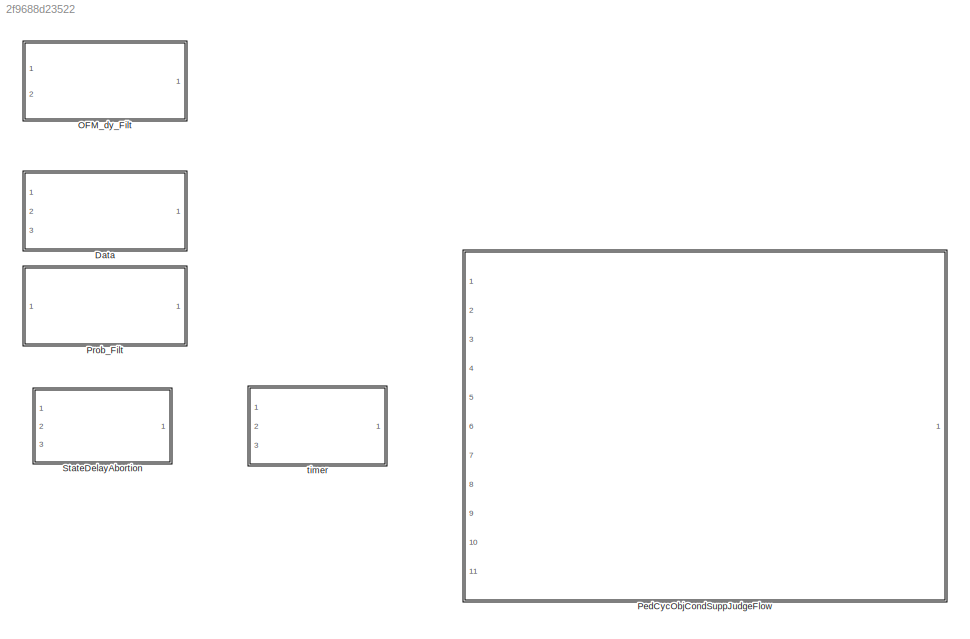
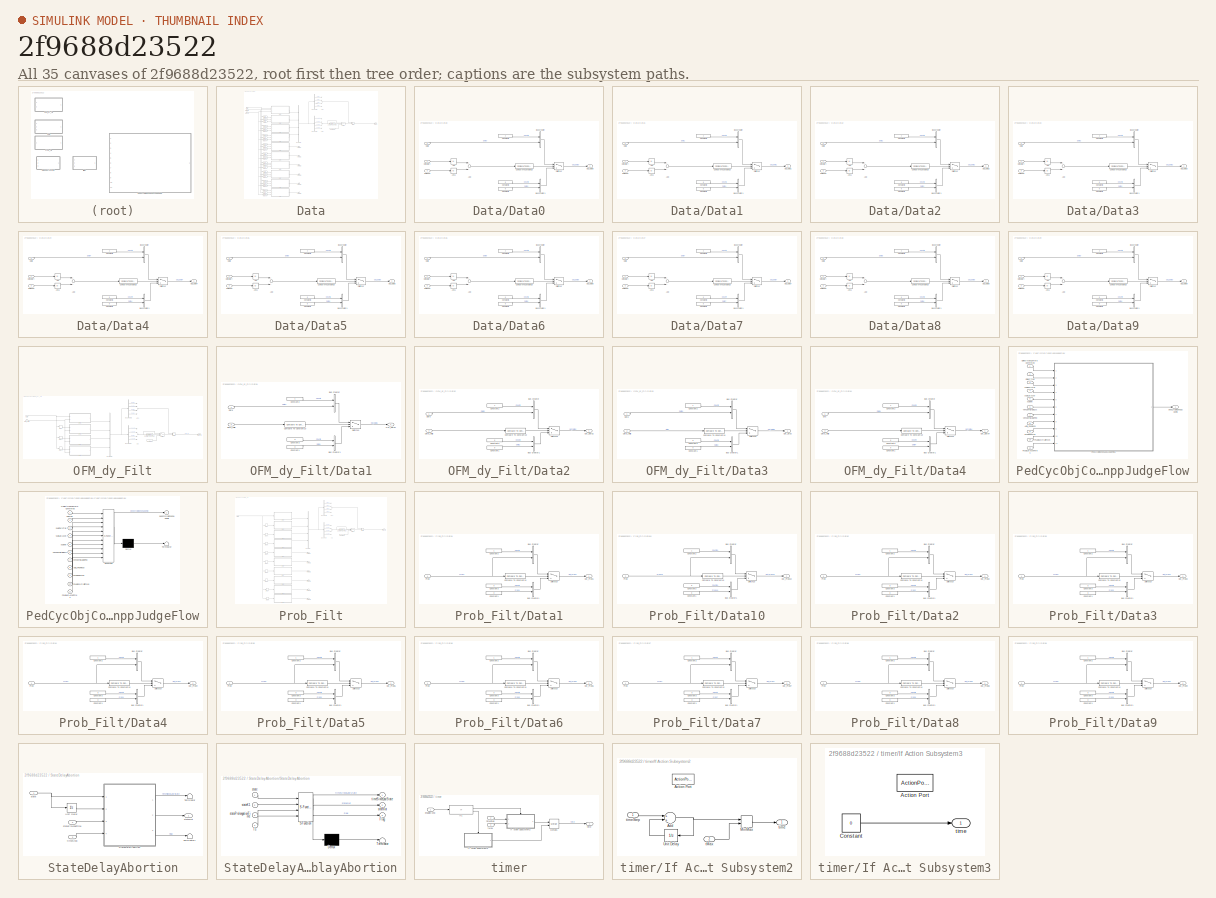
[diagram: thumbnail index - all 35 canvases of the model, root first then tree order]
MODEL slx_2f9688d23522
KIND library
CONFIG AbsTol = auto
CONFIG EnableMultiTasking = off
CONFIG FixedStep = auto
CONFIG MaxStep = auto
CONFIG MinStep = auto
CONFIG RelTol = 1e-3
CONFIG SampleTimeConstraint = Unconstrained
CONFIG Solver = VariableStepAuto
CONFIG SolverName = VariableStepAuto
CONFIG StartTime = 0.0
CONFIG StopTime = 10.0
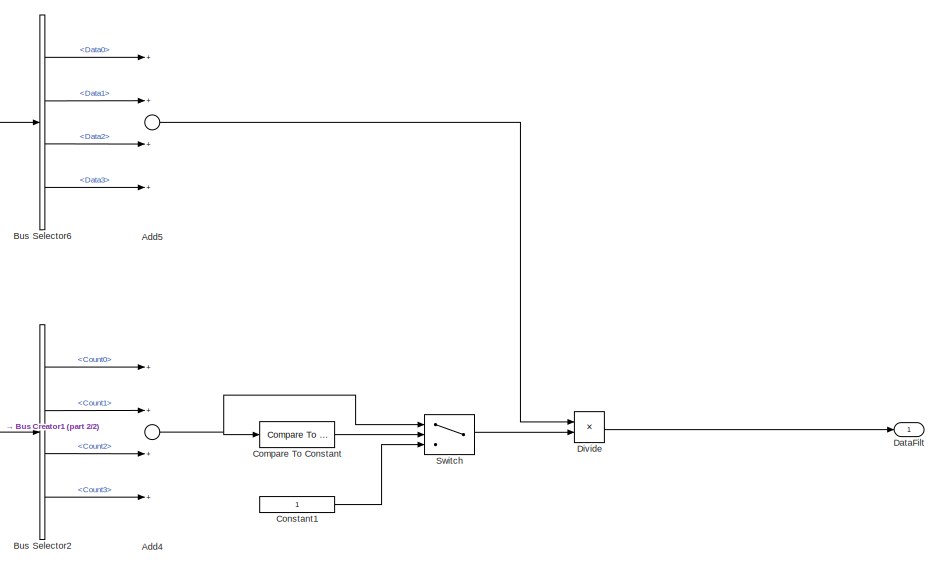
[diagram: Data - part 1/2, top right region]
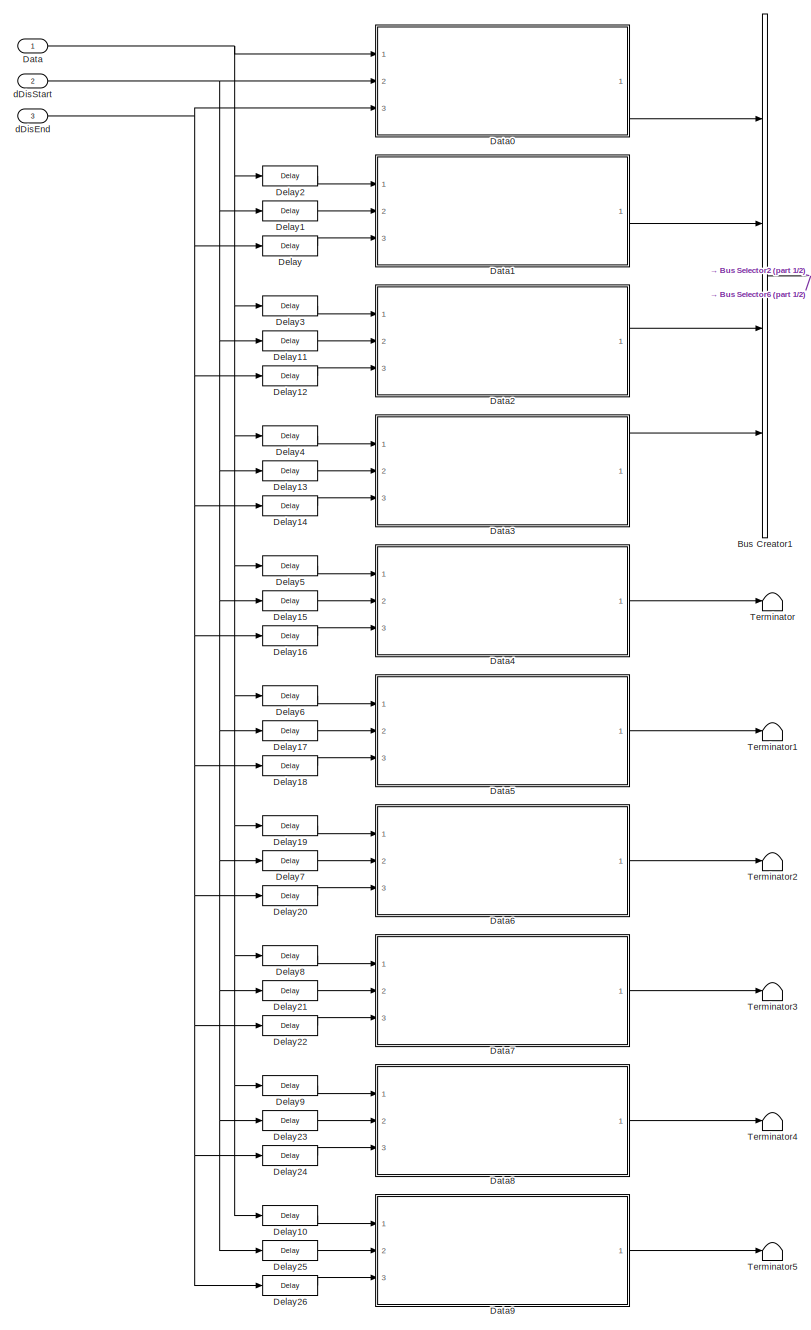
[diagram: Data - part 2/2, left side, full height]
BLOCK [SubSystem] Data
  AncestorBlock = AEBSFunctionLib/Data
  Ports = [3, 1]
  RequestExecContextInheritance = off
BLOCK [Sum] Data/Add4
  InputSameDT = off
  Inputs = ++++
  OutDataTypeStr = Inherit: Inherit via internal rule
  Ports = [4, 1]
  SaturateOnIntegerOverflow = off
BLOCK [Sum] Data/Add5
  InputSameDT = off
  Inputs = ++++
  OutDataTypeStr = Inherit: Inherit via internal rule
  Ports = [4, 1]
  SaturateOnIntegerOverflow = off
BLOCK [BusCreator] Data/Bus Creator1
  DisplayOption = bar
  InheritFromInputs = on
  Inputs = 4
  Ports = [4, 1]
BLOCK [BusSelector] Data/Bus Selector2
  OutputAsBus = off
  OutputSignals = Out_Data0.Count0,Out_Data1.Count1,Out_Data2.Count2,Out_Data3.Count3
  Ports = [1, 4]
BLOCK [BusSelector] Data/Bus Selector6
  OutputAsBus = off
  OutputSignals = Out_Data0.Data0,Out_Data1.Data1,Out_Data2.Data2,Out_Data3.Data3
  Ports = [1, 4]
BLOCK [Reference] Data/Compare To Constant  REF=simulink/Logic and Bit
Operations/Compare
To Constant
  Ports = [1, 1]
  SourceBlock = simulink/Logic and Bit\nOperations/Compare\nTo Constant
  SourceProductBaseCode = SL
  SourceProductName = Simulink
  SourceType = Compare To Constant
BLOCK [Constant] Data/Constant1
  OutDataTypeStr = single
BLOCK [Inport] Data/Data
  IconDisplay = Port number
BLOCK [SubSystem] Data/Data0
  Ports = [3, 1]
  RequestExecContextInheritance = off
BLOCK [Abs] Data/Data0/Abs
  SaturateOnIntegerOverflow = off
BLOCK [Abs] Data/Data0/Abs1
  SaturateOnIntegerOverflow = off
BLOCK [Sum] Data/Data0/Add
  InputSameDT = off
  OutDataTypeStr = Inherit: Inherit via internal rule
  Ports = [2, 1]
  SaturateOnIntegerOverflow = off
BLOCK [BusCreator] Data/Data0/Bus Creator
  DisplayOption = bar
  InheritFromInputs = on
  Inputs = 2
  Ports = [2, 1]
BLOCK [BusCreator] Data/Data0/Bus Creator1
  DisplayOption = bar
  InheritFromInputs = on
  Inputs = 2
  Ports = [2, 1]
BLOCK [Reference] Data/Data0/Compare To Constant10  REF=simulink/Logic and Bit
Operations/Compare
To Constant
  Ports = [1, 1]
  SourceBlock = simulink/Logic and Bit\nOperations/Compare\nTo Constant
  SourceProductBaseCode = SL
  SourceProductName = Simulink
  SourceType = Compare To Constant
BLOCK [Constant] Data/Data0/Constant1
  OutDataTypeStr = single
  Value = 0
BLOCK [Constant] Data/Data0/Constant2
  OutDataTypeStr = uint8
BLOCK [Constant] Data/Data0/Constant3
  OutDataTypeStr = uint8
  Value = 0
BLOCK [Inport] Data/Data0/Data
  IconDisplay = Port number
BLOCK [Outport] Data/Data0/Out_Data0
  IconDisplay = Port number
BLOCK [Switch] Data/Data0/Switch10
  Criteria = u2 > Threshold
  InputSameDT = off
  SaturateOnIntegerOverflow = off
BLOCK [Inport] Data/Data0/dDisEnd
  IconDisplay = Port number
  Port = 3
BLOCK [Inport] Data/Data0/dDisStart
  IconDisplay = Port number
  Port = 2
BLOCK [SubSystem] Data/Data1
  Ports = [3, 1]
  RequestExecContextInheritance = off
BLOCK [Abs] Data/Data1/Abs
  SaturateOnIntegerOverflow = off
BLOCK [Abs] Data/Data1/Abs1
  SaturateOnIntegerOverflow = off
BLOCK [Sum] Data/Data1/Add
  InputSameDT = off
  OutDataTypeStr = Inherit: Inherit via internal rule
  Ports = [2, 1]
  SaturateOnIntegerOverflow = off
BLOCK [BusCreator] Data/Data1/Bus Creator
  DisplayOption = bar
  InheritFromInputs = on
  Inputs = 2
  Ports = [2, 1]
BLOCK [BusCreator] Data/Data1/Bus Creator1
  DisplayOption = bar
  InheritFromInputs = on
  Inputs = 2
  Ports = [2, 1]
BLOCK [Reference] Data/Data1/Compare To Constant10  REF=simulink/Logic and Bit
Operations/Compare
To Constant
  Ports = [1, 1]
  SourceBlock = simulink/Logic and Bit\nOperations/Compare\nTo Constant
  SourceProductBaseCode = SL
  SourceProductName = Simulink
  SourceType = Compare To Constant
BLOCK [Constant] Data/Data1/Constant1
  OutDataTypeStr = single
  Value = 0
BLOCK [Constant] Data/Data1/Constant2
  OutDataTypeStr = uint8
BLOCK [Constant] Data/Data1/Constant3
  OutDataTypeStr = uint8
  Value = 0
BLOCK [Inport] Data/Data1/Data
  IconDisplay = Port number
BLOCK [Outport] Data/Data1/Out_Data1
  IconDisplay = Port number
BLOCK [Switch] Data/Data1/Switch10
  Criteria = u2 > Threshold
  InputSameDT = off
  SaturateOnIntegerOverflow = off
BLOCK [Inport] Data/Data1/dDisEnd
  IconDisplay = Port number
  Port = 3
BLOCK [Inport] Data/Data1/dDisStart
  IconDisplay = Port number
  Port = 2
BLOCK [SubSystem] Data/Data2
  Ports = [3, 1]
  RequestExecContextInheritance = off
BLOCK [Abs] Data/Data2/Abs
  SaturateOnIntegerOverflow = off
BLOCK [Abs] Data/Data2/Abs1
  SaturateOnIntegerOverflow = off
BLOCK [Sum] Data/Data2/Add
  InputSameDT = off
  OutDataTypeStr = Inherit: Inherit via internal rule
  Ports = [2, 1]
  SaturateOnIntegerOverflow = off
BLOCK [BusCreator] Data/Data2/Bus Creator
  DisplayOption = bar
  InheritFromInputs = on
  Inputs = 2
  Ports = [2, 1]
BLOCK [BusCreator] Data/Data2/Bus Creator1
  DisplayOption = bar
  InheritFromInputs = on
  Inputs = 2
  Ports = [2, 1]
BLOCK [Reference] Data/Data2/Compare To Constant10  REF=simulink/Logic and Bit
Operations/Compare
To Constant
  Ports = [1, 1]
  SourceBlock = simulink/Logic and Bit\nOperations/Compare\nTo Constant
  SourceProductBaseCode = SL
  SourceProductName = Simulink
  SourceType = Compare To Constant
BLOCK [Constant] Data/Data2/Constant1
  OutDataTypeStr = single
  Value = 0
BLOCK [Constant] Data/Data2/Constant2
  OutDataTypeStr = uint8
BLOCK [Constant] Data/Data2/Constant3
  OutDataTypeStr = uint8
  Value = 0
BLOCK [Inport] Data/Data2/Data
  IconDisplay = Port number
BLOCK [Outport] Data/Data2/Out_Data2
  IconDisplay = Port number
BLOCK [Switch] Data/Data2/Switch10
  Criteria = u2 > Threshold
  InputSameDT = off
  SaturateOnIntegerOverflow = off
BLOCK [Inport] Data/Data2/dDisEnd
  IconDisplay = Port number
  Port = 3
BLOCK [Inport] Data/Data2/dDisStart
  IconDisplay = Port number
  Port = 2
BLOCK [SubSystem] Data/Data3
  Ports = [3, 1]
  RequestExecContextInheritance = off
BLOCK [Abs] Data/Data3/Abs
  SaturateOnIntegerOverflow = off
BLOCK [Abs] Data/Data3/Abs1
  SaturateOnIntegerOverflow = off
BLOCK [Sum] Data/Data3/Add
  InputSameDT = off
  OutDataTypeStr = Inherit: Inherit via internal rule
  Ports = [2, 1]
  SaturateOnIntegerOverflow = off
BLOCK [BusCreator] Data/Data3/Bus Creator
  DisplayOption = bar
  InheritFromInputs = on
  Inputs = 2
  Ports = [2, 1]
BLOCK [BusCreator] Data/Data3/Bus Creator1
  DisplayOption = bar
  InheritFromInputs = on
  Inputs = 2
  Ports = [2, 1]
BLOCK [Reference] Data/Data3/Compare To Constant10  REF=simulink/Logic and Bit
Operations/Compare
To Constant
  Ports = [1, 1]
  SourceBlock = simulink/Logic and Bit\nOperations/Compare\nTo Constant
  SourceProductBaseCode = SL
  SourceProductName = Simulink
  SourceType = Compare To Constant
BLOCK [Constant] Data/Data3/Constant1
  OutDataTypeStr = single
  Value = 0
BLOCK [Constant] Data/Data3/Constant2
  OutDataTypeStr = uint8
BLOCK [Constant] Data/Data3/Constant3
  OutDataTypeStr = uint8
  Value = 0
BLOCK [Inport] Data/Data3/Data
  IconDisplay = Port number
BLOCK [Outport] Data/Data3/Out_Data3
  IconDisplay = Port number
BLOCK [Switch] Data/Data3/Switch10
  Criteria = u2 > Threshold
  InputSameDT = off
  SaturateOnIntegerOverflow = off
BLOCK [Inport] Data/Data3/dDisEnd
  IconDisplay = Port number
  Port = 3
BLOCK [Inport] Data/Data3/dDisStart
  IconDisplay = Port number
  Port = 2
BLOCK [SubSystem] Data/Data4
  Ports = [3, 1]
  RequestExecContextInheritance = off
BLOCK [Abs] Data/Data4/Abs
  SaturateOnIntegerOverflow = off
BLOCK [Abs] Data/Data4/Abs1
  SaturateOnIntegerOverflow = off
BLOCK [Sum] Data/Data4/Add
  InputSameDT = off
  OutDataTypeStr = Inherit: Inherit via internal rule
  Ports = [2, 1]
  SaturateOnIntegerOverflow = off
BLOCK [BusCreator] Data/Data4/Bus Creator
  DisplayOption = bar
  InheritFromInputs = on
  Inputs = 2
  Ports = [2, 1]
BLOCK [BusCreator] Data/Data4/Bus Creator1
  DisplayOption = bar
  InheritFromInputs = on
  Inputs = 2
  Ports = [2, 1]
BLOCK [Reference] Data/Data4/Compare To Constant10  REF=simulink/Logic and Bit
Operations/Compare
To Constant
  Ports = [1, 1]
  SourceBlock = simulink/Logic and Bit\nOperations/Compare\nTo Constant
  SourceProductBaseCode = SL
  SourceProductName = Simulink
  SourceType = Compare To Constant
BLOCK [Constant] Data/Data4/Constant1
  OutDataTypeStr = single
  Value = 0
BLOCK [Constant] Data/Data4/Constant2
  OutDataTypeStr = uint8
BLOCK [Constant] Data/Data4/Constant3
  OutDataTypeStr = uint8
  Value = 0
BLOCK [Inport] Data/Data4/Data
  IconDisplay = Port number
BLOCK [Outport] Data/Data4/Out_Data4
  IconDisplay = Port number
BLOCK [Switch] Data/Data4/Switch10
  Criteria = u2 > Threshold
  InputSameDT = off
  SaturateOnIntegerOverflow = off
BLOCK [Inport] Data/Data4/dDisEnd
  IconDisplay = Port number
  Port = 3
BLOCK [Inport] Data/Data4/dDisStart
  IconDisplay = Port number
  Port = 2
BLOCK [SubSystem] Data/Data5
  Ports = [3, 1]
  RequestExecContextInheritance = off
BLOCK [Abs] Data/Data5/Abs
  SaturateOnIntegerOverflow = off
BLOCK [Abs] Data/Data5/Abs1
  SaturateOnIntegerOverflow = off
BLOCK [Sum] Data/Data5/Add
  InputSameDT = off
  OutDataTypeStr = Inherit: Inherit via internal rule
  Ports = [2, 1]
  SaturateOnIntegerOverflow = off
BLOCK [BusCreator] Data/Data5/Bus Creator
  DisplayOption = bar
  InheritFromInputs = on
  Inputs = 2
  Ports = [2, 1]
BLOCK [BusCreator] Data/Data5/Bus Creator1
  DisplayOption = bar
  InheritFromInputs = on
  Inputs = 2
  Ports = [2, 1]
BLOCK [Reference] Data/Data5/Compare To Constant10  REF=simulink/Logic and Bit
Operations/Compare
To Constant
  Ports = [1, 1]
  SourceBlock = simulink/Logic and Bit\nOperations/Compare\nTo Constant
  SourceProductBaseCode = SL
  SourceProductName = Simulink
  SourceType = Compare To Constant
BLOCK [Constant] Data/Data5/Constant1
  OutDataTypeStr = single
  Value = 0
BLOCK [Constant] Data/Data5/Constant2
  OutDataTypeStr = uint8
BLOCK [Constant] Data/Data5/Constant3
  OutDataTypeStr = uint8
  Value = 0
BLOCK [Inport] Data/Data5/Data
  IconDisplay = Port number
BLOCK [Outport] Data/Data5/Out_Data5
  IconDisplay = Port number
BLOCK [Switch] Data/Data5/Switch10
  Criteria = u2 > Threshold
  InputSameDT = off
  SaturateOnIntegerOverflow = off
BLOCK [Inport] Data/Data5/dDisEnd
  IconDisplay = Port number
  Port = 3
BLOCK [Inport] Data/Data5/dDisStart
  IconDisplay = Port number
  Port = 2
BLOCK [SubSystem] Data/Data6
  Ports = [3, 1]
  RequestExecContextInheritance = off
BLOCK [Abs] Data/Data6/Abs
  SaturateOnIntegerOverflow = off
BLOCK [Abs] Data/Data6/Abs1
  SaturateOnIntegerOverflow = off
BLOCK [Sum] Data/Data6/Add
  InputSameDT = off
  OutDataTypeStr = Inherit: Inherit via internal rule
  Ports = [2, 1]
  SaturateOnIntegerOverflow = off
BLOCK [BusCreator] Data/Data6/Bus Creator
  DisplayOption = bar
  InheritFromInputs = on
  Inputs = 2
  Ports = [2, 1]
BLOCK [BusCreator] Data/Data6/Bus Creator1
  DisplayOption = bar
  InheritFromInputs = on
  Inputs = 2
  Ports = [2, 1]
BLOCK [Reference] Data/Data6/Compare To Constant10  REF=simulink/Logic and Bit
Operations/Compare
To Constant
  Ports = [1, 1]
  SourceBlock = simulink/Logic and Bit\nOperations/Compare\nTo Constant
  SourceProductBaseCode = SL
  SourceProductName = Simulink
  SourceType = Compare To Constant
BLOCK [Constant] Data/Data6/Constant1
  OutDataTypeStr = single
  Value = 0
BLOCK [Constant] Data/Data6/Constant2
  OutDataTypeStr = uint8
BLOCK [Constant] Data/Data6/Constant3
  OutDataTypeStr = uint8
  Value = 0
BLOCK [Inport] Data/Data6/Data
  IconDisplay = Port number
BLOCK [Outport] Data/Data6/Out_Data6
  IconDisplay = Port number
BLOCK [Switch] Data/Data6/Switch10
  Criteria = u2 > Threshold
  InputSameDT = off
  SaturateOnIntegerOverflow = off
BLOCK [Inport] Data/Data6/dDisEnd
  IconDisplay = Port number
  Port = 3
BLOCK [Inport] Data/Data6/dDisStart
  IconDisplay = Port number
  Port = 2
BLOCK [SubSystem] Data/Data7
  Ports = [3, 1]
  RequestExecContextInheritance = off
BLOCK [Abs] Data/Data7/Abs
  SaturateOnIntegerOverflow = off
BLOCK [Abs] Data/Data7/Abs1
  SaturateOnIntegerOverflow = off
BLOCK [Sum] Data/Data7/Add
  InputSameDT = off
  OutDataTypeStr = Inherit: Inherit via internal rule
  Ports = [2, 1]
  SaturateOnIntegerOverflow = off
BLOCK [BusCreator] Data/Data7/Bus Creator
  DisplayOption = bar
  InheritFromInputs = on
  Inputs = 2
  Ports = [2, 1]
BLOCK [BusCreator] Data/Data7/Bus Creator1
  DisplayOption = bar
  InheritFromInputs = on
  Inputs = 2
  Ports = [2, 1]
BLOCK [Reference] Data/Data7/Compare To Constant10  REF=simulink/Logic and Bit
Operations/Compare
To Constant
  Ports = [1, 1]
  SourceBlock = simulink/Logic and Bit\nOperations/Compare\nTo Constant
  SourceProductBaseCode = SL
  SourceProductName = Simulink
  SourceType = Compare To Constant
BLOCK [Constant] Data/Data7/Constant1
  OutDataTypeStr = single
  Value = 0
BLOCK [Constant] Data/Data7/Constant2
  OutDataTypeStr = uint8
BLOCK [Constant] Data/Data7/Constant3
  OutDataTypeStr = uint8
  Value = 0
BLOCK [Inport] Data/Data7/Data
  IconDisplay = Port number
BLOCK [Outport] Data/Data7/Out_Data7
  IconDisplay = Port number
BLOCK [Switch] Data/Data7/Switch10
  Criteria = u2 > Threshold
  InputSameDT = off
  SaturateOnIntegerOverflow = off
BLOCK [Inport] Data/Data7/dDisEnd
  IconDisplay = Port number
  Port = 3
BLOCK [Inport] Data/Data7/dDisStart
  IconDisplay = Port number
  Port = 2
BLOCK [SubSystem] Data/Data8
  Ports = [3, 1]
  RequestExecContextInheritance = off
BLOCK [Abs] Data/Data8/Abs
  SaturateOnIntegerOverflow = off
BLOCK [Abs] Data/Data8/Abs1
  SaturateOnIntegerOverflow = off
BLOCK [Sum] Data/Data8/Add
  InputSameDT = off
  OutDataTypeStr = Inherit: Inherit via internal rule
  Ports = [2, 1]
  SaturateOnIntegerOverflow = off
BLOCK [BusCreator] Data/Data8/Bus Creator
  DisplayOption = bar
  InheritFromInputs = on
  Inputs = 2
  Ports = [2, 1]
BLOCK [BusCreator] Data/Data8/Bus Creator1
  DisplayOption = bar
  InheritFromInputs = on
  Inputs = 2
  Ports = [2, 1]
BLOCK [Reference] Data/Data8/Compare To Constant10  REF=simulink/Logic and Bit
Operations/Compare
To Constant
  Ports = [1, 1]
  SourceBlock = simulink/Logic and Bit\nOperations/Compare\nTo Constant
  SourceProductBaseCode = SL
  SourceProductName = Simulink
  SourceType = Compare To Constant
BLOCK [Constant] Data/Data8/Constant1
  OutDataTypeStr = single
  Value = 0
BLOCK [Constant] Data/Data8/Constant2
  OutDataTypeStr = uint8
BLOCK [Constant] Data/Data8/Constant3
  OutDataTypeStr = uint8
  Value = 0
BLOCK [Inport] Data/Data8/Data
  IconDisplay = Port number
BLOCK [Outport] Data/Data8/Out_Data8
  IconDisplay = Port number
BLOCK [Switch] Data/Data8/Switch10
  Criteria = u2 > Threshold
  InputSameDT = off
  SaturateOnIntegerOverflow = off
BLOCK [Inport] Data/Data8/dDisEnd
  IconDisplay = Port number
  Port = 3
BLOCK [Inport] Data/Data8/dDisStart
  IconDisplay = Port number
  Port = 2
BLOCK [SubSystem] Data/Data9
  Ports = [3, 1]
  RequestExecContextInheritance = off
BLOCK [Abs] Data/Data9/Abs
  SaturateOnIntegerOverflow = off
BLOCK [Abs] Data/Data9/Abs1
  SaturateOnIntegerOverflow = off
BLOCK [Sum] Data/Data9/Add
  InputSameDT = off
  OutDataTypeStr = Inherit: Inherit via internal rule
  Ports = [2, 1]
  SaturateOnIntegerOverflow = off
BLOCK [BusCreator] Data/Data9/Bus Creator
  DisplayOption = bar
  InheritFromInputs = on
  Inputs = 2
  Ports = [2, 1]
BLOCK [BusCreator] Data/Data9/Bus Creator1
  DisplayOption = bar
  InheritFromInputs = on
  Inputs = 2
  Ports = [2, 1]
BLOCK [Reference] Data/Data9/Compare To Constant10  REF=simulink/Logic and Bit
Operations/Compare
To Constant
  Ports = [1, 1]
  SourceBlock = simulink/Logic and Bit\nOperations/Compare\nTo Constant
  SourceProductBaseCode = SL
  SourceProductName = Simulink
  SourceType = Compare To Constant
BLOCK [Constant] Data/Data9/Constant1
  OutDataTypeStr = single
  Value = 0
BLOCK [Constant] Data/Data9/Constant2
  OutDataTypeStr = uint8
BLOCK [Constant] Data/Data9/Constant3
  OutDataTypeStr = uint8
  Value = 0
BLOCK [Inport] Data/Data9/Data
  IconDisplay = Port number
BLOCK [Outport] Data/Data9/Out_Data9
  IconDisplay = Port number
BLOCK [Switch] Data/Data9/Switch10
  Criteria = u2 > Threshold
  InputSameDT = off
  SaturateOnIntegerOverflow = off
BLOCK [Inport] Data/Data9/dDisEnd
  IconDisplay = Port number
  Port = 3
BLOCK [Inport] Data/Data9/dDisStart
  IconDisplay = Port number
  Port = 2
BLOCK [Outport] Data/DataFilt
  IconDisplay = Port number
BLOCK [Delay] Data/Delay
  DelayLength = 1
  InitialCondition = 0
  InputPortMap = u0
  Ports = [1, 1]
BLOCK [Delay] Data/Delay1
  DelayLength = 1
  InitialCondition = 0
  InputPortMap = u0
  Ports = [1, 1]
BLOCK [Delay] Data/Delay10
  DelayLength = 9
  InitialCondition = 0
  InputPortMap = u0
  Ports = [1, 1]
BLOCK [Delay] Data/Delay11
  InitialCondition = 0
  InputPortMap = u0
  Ports = [1, 1]
BLOCK [Delay] Data/Delay12
  InitialCondition = 0
  InputPortMap = u0
  Ports = [1, 1]
BLOCK [Delay] Data/Delay13
  DelayLength = 3
  InitialCondition = 0
  InputPortMap = u0
  Ports = [1, 1]
BLOCK [Delay] Data/Delay14
  DelayLength = 3
  InitialCondition = 0
  InputPortMap = u0
  Ports = [1, 1]
BLOCK [Delay] Data/Delay15
  DelayLength = 4
  InitialCondition = 0
  InputPortMap = u0
  Ports = [1, 1]
BLOCK [Delay] Data/Delay16
  DelayLength = 4
  InitialCondition = 0
  InputPortMap = u0
  Ports = [1, 1]
BLOCK [Delay] Data/Delay17
  DelayLength = 5
  InitialCondition = 0
  InputPortMap = u0
  Ports = [1, 1]
BLOCK [Delay] Data/Delay18
  DelayLength = 5
  InitialCondition = 0
  InputPortMap = u0
  Ports = [1, 1]
BLOCK [Delay] Data/Delay19
  DelayLength = 6
  InitialCondition = 0
  InputPortMap = u0
  Ports = [1, 1]
BLOCK [Delay] Data/Delay2
  DelayLength = 1
  InitialCondition = 0
  InputPortMap = u0
  Ports = [1, 1]
BLOCK [Delay] Data/Delay20
  DelayLength = 6
  InitialCondition = 0
  InputPortMap = u0
  Ports = [1, 1]
BLOCK [Delay] Data/Delay21
  DelayLength = 7
  InitialCondition = 0
  InputPortMap = u0
  Ports = [1, 1]
BLOCK [Delay] Data/Delay22
  DelayLength = 7
  InitialCondition = 0
  InputPortMap = u0
  Ports = [1, 1]
BLOCK [Delay] Data/Delay23
  DelayLength = 8
  InitialCondition = 0
  InputPortMap = u0
  Ports = [1, 1]
BLOCK [Delay] Data/Delay24
  DelayLength = 8
  InitialCondition = 0
  InputPortMap = u0
  Ports = [1, 1]
BLOCK [Delay] Data/Delay25
  DelayLength = 9
  InitialCondition = 0
  InputPortMap = u0
  Ports = [1, 1]
BLOCK [Delay] Data/Delay26
  DelayLength = 9
  InitialCondition = 0
  InputPortMap = u0
  Ports = [1, 1]
BLOCK [Delay] Data/Delay3
  InitialCondition = 0
  InputPortMap = u0
  Ports = [1, 1]
BLOCK [Delay] Data/Delay4
  DelayLength = 3
  InitialCondition = 0
  InputPortMap = u0
  Ports = [1, 1]
BLOCK [Delay] Data/Delay5
  DelayLength = 4
  InitialCondition = 0
  InputPortMap = u0
  Ports = [1, 1]
BLOCK [Delay] Data/Delay6
  DelayLength = 5
  InitialCondition = 0
  InputPortMap = u0
  Ports = [1, 1]
BLOCK [Delay] Data/Delay7
  DelayLength = 6
  InitialCondition = 0
  InputPortMap = u0
  Ports = [1, 1]
BLOCK [Delay] Data/Delay8
  DelayLength = 7
  InitialCondition = 0
  InputPortMap = u0
  Ports = [1, 1]
BLOCK [Delay] Data/Delay9
  DelayLength = 8
  InitialCondition = 0
  InputPortMap = u0
  Ports = [1, 1]
BLOCK [Product] Data/Divide
  InputSameDT = off
  Inputs = */
  OutDataTypeStr = Inherit: Inherit via internal rule
  Ports = [2, 1]
  RndMeth = Floor
  SaturateOnIntegerOverflow = off
BLOCK [Switch] Data/Switch
  Criteria = u2 > Threshold
  InputSameDT = off
  SaturateOnIntegerOverflow = off
BLOCK [Terminator] Data/Terminator
BLOCK [Terminator] Data/Terminator1
BLOCK [Terminator] Data/Terminator2
BLOCK [Terminator] Data/Terminator3
BLOCK [Terminator] Data/Terminator4
BLOCK [Terminator] Data/Terminator5
BLOCK [Inport] Data/dDisEnd
  IconDisplay = Port number
  Port = 3
BLOCK [Inport] Data/dDisStart
  IconDisplay = Port number
  Port = 2
BLOCK [SubSystem] OFM_dy_Filt
  AncestorBlock = TOS_LIB/Prob_Filt
  Ports = [2, 1]
  RequestExecContextInheritance = off
BLOCK [Sum] OFM_dy_Filt/Add
  InputSameDT = off
  Inputs = ++++
  OutDataTypeStr = Inherit: Inherit via internal rule
  Ports = [4, 1]
  SaturateOnIntegerOverflow = off
BLOCK [Sum] OFM_dy_Filt/Add1
  InputSameDT = off
  Inputs = ++++
  OutDataTypeStr = Inherit: Inherit via internal rule
  Ports = [4, 1]
  SaturateOnIntegerOverflow = off
BLOCK [BusCreator] OFM_dy_Filt/Bus Creator
  DisplayOption = bar
  InheritFromInputs = on
  Inputs = 4
  Ports = [4, 1]
BLOCK [BusSelector] OFM_dy_Filt/Bus Selector
  OutputAsBus = off
  OutputSignals = Out_Data1.Count1,Out_Data2.Count2,Out_Data3.Data3,Out_Data4.Count4
  Ports = [1, 4]
BLOCK [BusSelector] OFM_dy_Filt/Bus Selector2
  OutputAsBus = off
  OutputSignals = Out_Data1.Data1,Out_Data2.Data2,Out_Data3.Data3,Out_Data4.Data4
  Ports = [1, 4]
BLOCK [Reference] OFM_dy_Filt/Compare To Constant  REF=simulink/Logic and Bit
Operations/Compare
To Constant
  Ports = [1, 1]
  SourceBlock = simulink/Logic and Bit\nOperations/Compare\nTo Constant
  SourceProductBaseCode = SL
  SourceProductName = Simulink
  SourceType = Compare To Constant
BLOCK [Constant] OFM_dy_Filt/Constant1
  OutDataTypeStr = single
BLOCK [Inport] OFM_dy_Filt/Data
  IconDisplay = Port number
BLOCK [SubSystem] OFM_dy_Filt/Data1
  Ports = [2, 1]
  RequestExecContextInheritance = off
BLOCK [BusCreator] OFM_dy_Filt/Data1/Bus Creator
  DisplayOption = bar
  InheritFromInputs = on
  Inputs = 2
  Ports = [2, 1]
BLOCK [BusCreator] OFM_dy_Filt/Data1/Bus Creator1
  DisplayOption = bar
  InheritFromInputs = on
  Inputs = 2
  Ports = [2, 1]
BLOCK [Reference] OFM_dy_Filt/Data1/Compare To Constant10  REF=simulink/Logic and Bit
Operations/Compare
To Constant
  Ports = [1, 1]
  SourceBlock = simulink/Logic and Bit\nOperations/Compare\nTo Constant
  SourceProductBaseCode = SL
  SourceProductName = Simulink
  SourceType = Compare To Constant
BLOCK [Constant] OFM_dy_Filt/Data1/Constant1
  OutDataTypeStr = single
  Value = 0
BLOCK [Constant] OFM_dy_Filt/Data1/Constant2
  OutDataTypeStr = uint8
BLOCK [Constant] OFM_dy_Filt/Data1/Constant3
  OutDataTypeStr = uint8
  Value = 0
BLOCK [Inport] OFM_dy_Filt/Data1/Data
  IconDisplay = Port number
BLOCK [Inport] OFM_dy_Filt/Data1/Data_Vaild
  IconDisplay = Port number
  Port = 2
BLOCK [Outport] OFM_dy_Filt/Data1/Out_Data1
  IconDisplay = Port number
BLOCK [Switch] OFM_dy_Filt/Data1/Switch10
  Criteria = u2 > Threshold
  InputSameDT = off
  SaturateOnIntegerOverflow = off
BLOCK [SubSystem] OFM_dy_Filt/Data2
  Ports = [2, 1]
  RequestExecContextInheritance = off
BLOCK [BusCreator] OFM_dy_Filt/Data2/Bus Creator
  DisplayOption = bar
  InheritFromInputs = on
  Inputs = 2
  Ports = [2, 1]
BLOCK [BusCreator] OFM_dy_Filt/Data2/Bus Creator1
  DisplayOption = bar
  InheritFromInputs = on
  Inputs = 2
  Ports = [2, 1]
BLOCK [Reference] OFM_dy_Filt/Data2/Compare To Constant10  REF=simulink/Logic and Bit
Operations/Compare
To Constant
  Ports = [1, 1]
  SourceBlock = simulink/Logic and Bit\nOperations/Compare\nTo Constant
  SourceProductBaseCode = SL
  SourceProductName = Simulink
  SourceType = Compare To Constant
BLOCK [Constant] OFM_dy_Filt/Data2/Constant1
  OutDataTypeStr = single
  Value = 0
BLOCK [Constant] OFM_dy_Filt/Data2/Constant2
  OutDataTypeStr = uint8
BLOCK [Constant] OFM_dy_Filt/Data2/Constant3
  OutDataTypeStr = uint8
  Value = 0
BLOCK [Inport] OFM_dy_Filt/Data2/Data
  IconDisplay = Port number
BLOCK [Inport] OFM_dy_Filt/Data2/Data_Vaild
  IconDisplay = Port number
  Port = 2
BLOCK [Outport] OFM_dy_Filt/Data2/Out_Data2
  IconDisplay = Port number
BLOCK [Switch] OFM_dy_Filt/Data2/Switch10
  Criteria = u2 > Threshold
  InputSameDT = off
  SaturateOnIntegerOverflow = off
BLOCK [SubSystem] OFM_dy_Filt/Data3
  Ports = [2, 1]
  RequestExecContextInheritance = off
BLOCK [BusCreator] OFM_dy_Filt/Data3/Bus Creator
  DisplayOption = bar
  InheritFromInputs = on
  Inputs = 2
  Ports = [2, 1]
BLOCK [BusCreator] OFM_dy_Filt/Data3/Bus Creator1
  DisplayOption = bar
  InheritFromInputs = on
  Inputs = 2
  Ports = [2, 1]
BLOCK [Reference] OFM_dy_Filt/Data3/Compare To Constant10  REF=simulink/Logic and Bit
Operations/Compare
To Constant
  Ports = [1, 1]
  SourceBlock = simulink/Logic and Bit\nOperations/Compare\nTo Constant
  SourceProductBaseCode = SL
  SourceProductName = Simulink
  SourceType = Compare To Constant
BLOCK [Constant] OFM_dy_Filt/Data3/Constant1
  OutDataTypeStr = single
  Value = 0
BLOCK [Constant] OFM_dy_Filt/Data3/Constant2
  OutDataTypeStr = uint8
BLOCK [Constant] OFM_dy_Filt/Data3/Constant3
  OutDataTypeStr = uint8
  Value = 0
BLOCK [Inport] OFM_dy_Filt/Data3/Data
  IconDisplay = Port number
BLOCK [Inport] OFM_dy_Filt/Data3/Data_Vaild
  IconDisplay = Port number
  Port = 2
BLOCK [Outport] OFM_dy_Filt/Data3/Out_Dta3
  IconDisplay = Port number
BLOCK [Switch] OFM_dy_Filt/Data3/Switch10
  Criteria = u2 > Threshold
  InputSameDT = off
  SaturateOnIntegerOverflow = off
BLOCK [SubSystem] OFM_dy_Filt/Data4
  Ports = [2, 1]
  RequestExecContextInheritance = off
BLOCK [BusCreator] OFM_dy_Filt/Data4/Bus Creator
  DisplayOption = bar
  InheritFromInputs = on
  Inputs = 2
  Ports = [2, 1]
BLOCK [BusCreator] OFM_dy_Filt/Data4/Bus Creator1
  DisplayOption = bar
  InheritFromInputs = on
  Inputs = 2
  Ports = [2, 1]
BLOCK [Reference] OFM_dy_Filt/Data4/Compare To Constant10  REF=simulink/Logic and Bit
Operations/Compare
To Constant
  Ports = [1, 1]
  SourceBlock = simulink/Logic and Bit\nOperations/Compare\nTo Constant
  SourceProductBaseCode = SL
  SourceProductName = Simulink
  SourceType = Compare To Constant
BLOCK [Constant] OFM_dy_Filt/Data4/Constant1
  OutDataTypeStr = single
  Value = 0
BLOCK [Constant] OFM_dy_Filt/Data4/Constant2
  OutDataTypeStr = uint8
BLOCK [Constant] OFM_dy_Filt/Data4/Constant3
  OutDataTypeStr = uint8
  Value = 0
BLOCK [Inport] OFM_dy_Filt/Data4/Data_Vaild
  IconDisplay = Port number
  Port = 2
BLOCK [Inport] OFM_dy_Filt/Data4/Dta
  IconDisplay = Port number
BLOCK [Outport] OFM_dy_Filt/Data4/Out_Data4
  IconDisplay = Port number
BLOCK [Switch] OFM_dy_Filt/Data4/Switch10
  Criteria = u2 > Threshold
  InputSameDT = off
  SaturateOnIntegerOverflow = off
BLOCK [Outport] OFM_dy_Filt/Data_Filt
  IconDisplay = Port number
BLOCK [Inport] OFM_dy_Filt/Data_Vaild
  IconDisplay = Port number
  Port = 2
BLOCK [Delay] OFM_dy_Filt/Delay
  DelayLength = 1
  InitialCondition = 0
  InputPortMap = u0
  Ports = [1, 1]
BLOCK [Delay] OFM_dy_Filt/Delay1
  InitialCondition = 0
  InputPortMap = u0
  Ports = [1, 1]
BLOCK [Delay] OFM_dy_Filt/Delay2
  DelayLength = 3
  InitialCondition = 0
  InputPortMap = u0
  Ports = [1, 1]
BLOCK [Product] OFM_dy_Filt/Divide
  InputSameDT = off
  Inputs = */
  OutDataTypeStr = Inherit: Inherit via internal rule
  Ports = [2, 1]
  RndMeth = Floor
  SaturateOnIntegerOverflow = off
BLOCK [Switch] OFM_dy_Filt/Switch
  Criteria = u2 > Threshold
  InputSameDT = off
  SaturateOnIntegerOverflow = off
BLOCK [SubSystem] PedCycObjCondSuppJudgeFlow
  Ports = [11, 1]
  RequestExecContextInheritance = off
  TreatAsAtomicUnit = on
BLOCK [Inport] PedCycObjCondSuppJudgeFlow/AEB_PedResp
  IconDisplay = Port number
  Port = 8
BLOCK [Inport] PedCycObjCondSuppJudgeFlow/ObjectType
  IconDisplay = Port number
  Port = 2
BLOCK [Inport] PedCycObjCondSuppJudgeFlow/ObjectTypeCameraConfirmed
  IconDisplay = Port number
BLOCK [SubSystem] PedCycObjCondSuppJudgeFlow/PedCycObjCondSuppJudgeFlow
  ErrorFcn = Stateflow.Translate.translate
  PermitHierarchicalResolution = ExplicitOnly
  Ports = [11, 1]
  RequestExecContextInheritance = off
  SFBlockType = Chart
  TreatAsAtomicUnit = on
BLOCK [Demux] PedCycObjCondSuppJudgeFlow/PedCycObjCondSuppJudgeFlow/ Demux 
  Outputs = 1
  Ports = [1, 1]
BLOCK [S-Function] PedCycObjCondSuppJudgeFlow/PedCycObjCondSuppJudgeFlow/ SFunction 
  EnableBusSupport = off
  FunctionName = sf_sfun
  Parameters = CNSwtOFF
  PortCounts = [11 2]
  Ports = [11, 2]
  SFcnIsStateOwnerBlock = off
  SFunctionDeploymentMode = off
  Tag = Stateflow S-Function 9
BLOCK [Terminator] PedCycObjCondSuppJudgeFlow/PedCycObjCondSuppJudgeFlow/ Terminator 
BLOCK [Inport] PedCycObjCondSuppJudgeFlow/PedCycObjCondSuppJudgeFlow/AEB_PedResp
  IconDisplay = Port number
  Port = 8
BLOCK [Inport] PedCycObjCondSuppJudgeFlow/PedCycObjCondSuppJudgeFlow/ObjectTypeCameraConfirmed
  IconDisplay = Port number
BLOCK [Inport] PedCycObjCondSuppJudgeFlow/PedCycObjCondSuppJudgeFlow/PsubjCurvtraijThres
  IconDisplay = Port number
  Port = 10
BLOCK [Inport] PedCycObjCondSuppJudgeFlow/PedCycObjCondSuppJudgeFlow/PsubjLatAccelThres
  IconDisplay = Port number
  Port = 11
BLOCK [Inport] PedCycObjCondSuppJudgeFlow/PedCycObjCondSuppJudgeFlow/PsubjVelThres
  IconDisplay = Port number
  Port = 9
BLOCK [Inport] PedCycObjCondSuppJudgeFlow/PedCycObjCondSuppJudgeFlow/objType
  IconDisplay = Port number
  Port = 2
BLOCK [Outport] PedCycObjCondSuppJudgeFlow/PedCycObjCondSuppJudgeFlow/pedCycObjCondSuppFlg
  IconDisplay = Port number
BLOCK [Inport] PedCycObjCondSuppJudgeFlow/PedCycObjCondSuppJudgeFlow/subjCurvTraj
  IconDisplay = Port number
  Port = 3
BLOCK [Inport] PedCycObjCondSuppJudgeFlow/PedCycObjCondSuppJudgeFlow/subjLatAccel
  IconDisplay = Port number
  Port = 4
BLOCK [Inport] PedCycObjCondSuppJudgeFlow/PedCycObjCondSuppJudgeFlow/subjVel
  IconDisplay = Port number
  Port = 5
BLOCK [Inport] PedCycObjCondSuppJudgeFlow/PedCycObjCondSuppJudgeFlow/vehConfigAEBCyc
  IconDisplay = Port number
  Port = 6
BLOCK [Inport] PedCycObjCondSuppJudgeFlow/PedCycObjCondSuppJudgeFlow/vehConfigAEBPed
  IconDisplay = Port number
  Port = 7
BLOCK [Inport] PedCycObjCondSuppJudgeFlow/PsubjCurvtraijThres
  IconDisplay = Port number
  Port = 10
BLOCK [Inport] PedCycObjCondSuppJudgeFlow/PsubjLatAccelThres
  IconDisplay = Port number
  Port = 11
BLOCK [Inport] PedCycObjCondSuppJudgeFlow/PsubjVelThres
  IconDisplay = Port number
  Port = 9
BLOCK [Outport] PedCycObjCondSuppJudgeFlow/pedCycObjCondSuppFlg
  IconDisplay = Port number
BLOCK [Inport] PedCycObjCondSuppJudgeFlow/subjCurvTraj
  IconDisplay = Port number
  Port = 3
BLOCK [Inport] PedCycObjCondSuppJudgeFlow/subjLatAccel
  IconDisplay = Port number
  Port = 4
BLOCK [Inport] PedCycObjCondSuppJudgeFlow/subjVel
  IconDisplay = Port number
  Port = 5
BLOCK [Inport] PedCycObjCondSuppJudgeFlow/vehConfigAEBCyc
  IconDisplay = Port number
  Port = 6
BLOCK [Inport] PedCycObjCondSuppJudgeFlow/vehConfigAEBPed
  IconDisplay = Port number
  Port = 7
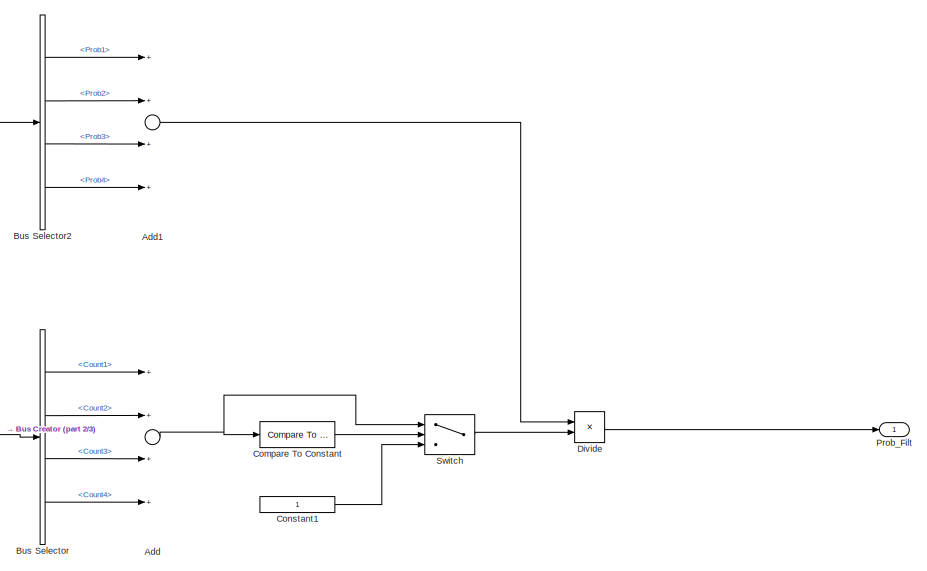
[diagram: Prob_Filt - part 1/3, top right region]
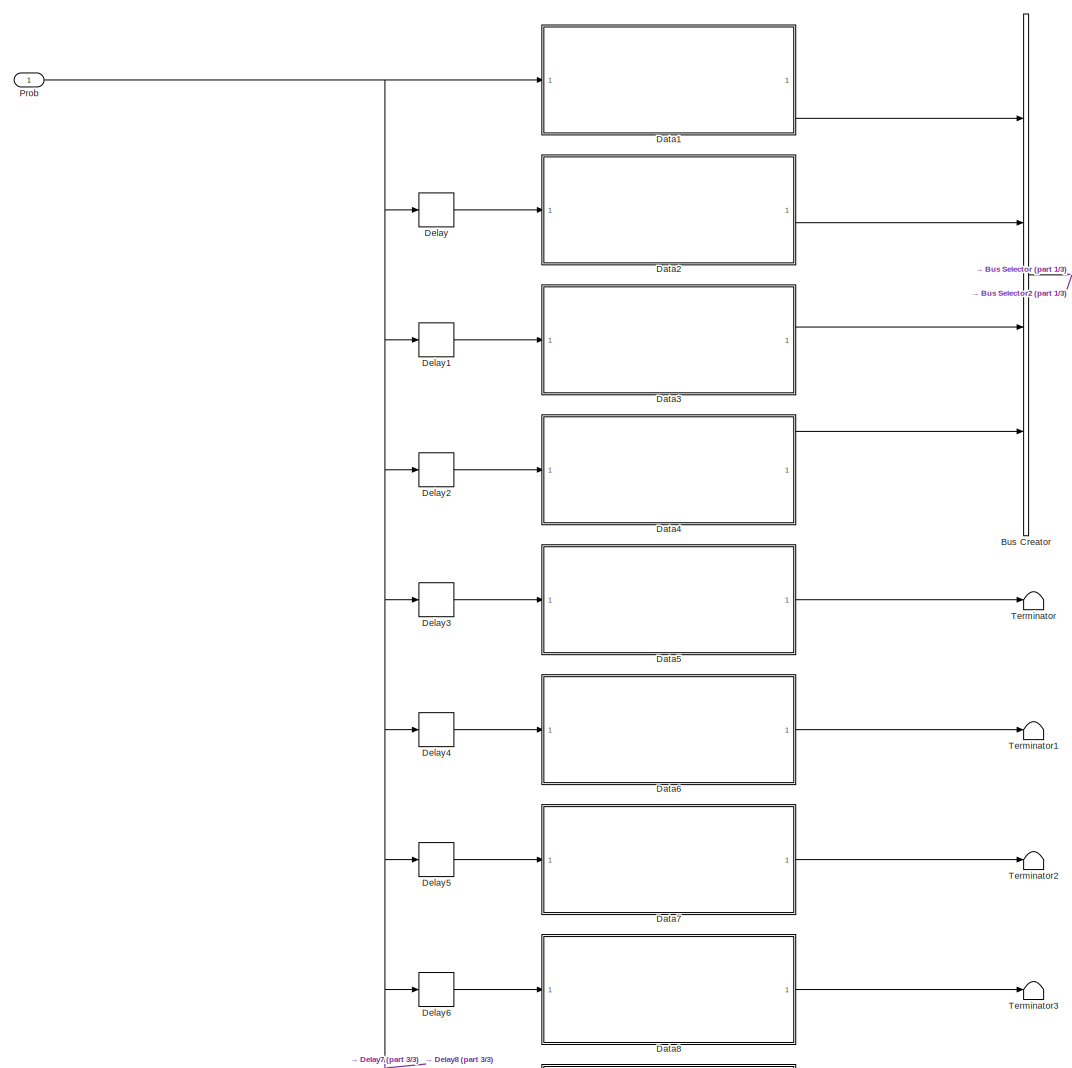
[diagram: Prob_Filt - part 2/3, middle left region]
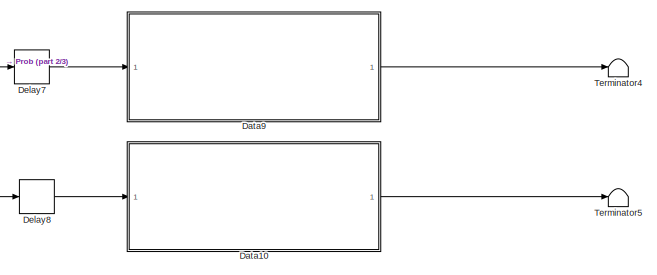
[diagram: Prob_Filt - part 3/3, bottom center region]
BLOCK [SubSystem] Prob_Filt
  AncestorBlock = AEBSFunctionLib/Prob_Filt
  Ports = [1, 1]
  RequestExecContextInheritance = off
BLOCK [Sum] Prob_Filt/Add
  InputSameDT = off
  Inputs = ++++
  OutDataTypeStr = Inherit: Inherit via internal rule
  Ports = [4, 1]
  SaturateOnIntegerOverflow = off
BLOCK [Sum] Prob_Filt/Add1
  InputSameDT = off
  Inputs = ++++
  OutDataTypeStr = Inherit: Inherit via internal rule
  Ports = [4, 1]
  SaturateOnIntegerOverflow = off
BLOCK [BusCreator] Prob_Filt/Bus Creator
  DisplayOption = bar
  InheritFromInputs = on
  Inputs = 4
  Ports = [4, 1]
BLOCK [BusSelector] Prob_Filt/Bus Selector
  OutputAsBus = off
  OutputSignals = Out_Prob1.Count1,Out_Prob2.Count2,Out_Prob3.Count3,Out_Prob4.Count4
  Ports = [1, 4]
BLOCK [BusSelector] Prob_Filt/Bus Selector2
  OutputAsBus = off
  OutputSignals = Out_Prob1.Prob1,Out_Prob2.Prob2,Out_Prob3.Prob3,Out_Prob4.Prob4
  Ports = [1, 4]
BLOCK [Reference] Prob_Filt/Compare To Constant  REF=simulink/Logic and Bit
Operations/Compare
To Constant
  Ports = [1, 1]
  SourceBlock = simulink/Logic and Bit\nOperations/Compare\nTo Constant
  SourceProductBaseCode = SL
  SourceProductName = Simulink
  SourceType = Compare To Constant
BLOCK [Constant] Prob_Filt/Constant1
  OutDataTypeStr = single
BLOCK [SubSystem] Prob_Filt/Data1
  Ports = [1, 1]
  RequestExecContextInheritance = off
BLOCK [BusCreator] Prob_Filt/Data1/Bus Creator
  DisplayOption = bar
  InheritFromInputs = on
  Inputs = 2
  Ports = [2, 1]
BLOCK [BusCreator] Prob_Filt/Data1/Bus Creator1
  DisplayOption = bar
  InheritFromInputs = on
  Inputs = 2
  Ports = [2, 1]
BLOCK [Reference] Prob_Filt/Data1/Compare To Constant10  REF=simulink/Logic and Bit
Operations/Compare
To Constant
  Ports = [1, 1]
  SourceBlock = simulink/Logic and Bit\nOperations/Compare\nTo Constant
  SourceProductBaseCode = SL
  SourceProductName = Simulink
  SourceType = Compare To Constant
BLOCK [Constant] Prob_Filt/Data1/Constant1
  OutDataTypeStr = single
  Value = 0
BLOCK [Constant] Prob_Filt/Data1/Constant2
  OutDataTypeStr = uint8
BLOCK [Constant] Prob_Filt/Data1/Constant3
  OutDataTypeStr = uint8
  Value = 0
BLOCK [Outport] Prob_Filt/Data1/Out_Prob1
  IconDisplay = Port number
BLOCK [Inport] Prob_Filt/Data1/Prob
  IconDisplay = Port number
BLOCK [Switch] Prob_Filt/Data1/Switch10
  Criteria = u2 > Threshold
  InputSameDT = off
  SaturateOnIntegerOverflow = off
BLOCK [SubSystem] Prob_Filt/Data10
  Ports = [1, 1]
  RequestExecContextInheritance = off
BLOCK [BusCreator] Prob_Filt/Data10/Bus Creator
  DisplayOption = bar
  InheritFromInputs = on
  Inputs = 2
  Ports = [2, 1]
BLOCK [BusCreator] Prob_Filt/Data10/Bus Creator1
  DisplayOption = bar
  InheritFromInputs = on
  Inputs = 2
  Ports = [2, 1]
BLOCK [Reference] Prob_Filt/Data10/Compare To Constant10  REF=simulink/Logic and Bit
Operations/Compare
To Constant
  Ports = [1, 1]
  SourceBlock = simulink/Logic and Bit\nOperations/Compare\nTo Constant
  SourceProductBaseCode = SL
  SourceProductName = Simulink
  SourceType = Compare To Constant
BLOCK [Constant] Prob_Filt/Data10/Constant1
  OutDataTypeStr = single
  Value = 0
BLOCK [Constant] Prob_Filt/Data10/Constant2
  OutDataTypeStr = uint8
BLOCK [Constant] Prob_Filt/Data10/Constant3
  OutDataTypeStr = uint8
  Value = 0
BLOCK [Outport] Prob_Filt/Data10/Out_Prob10
  IconDisplay = Port number
BLOCK [Inport] Prob_Filt/Data10/Prob
  IconDisplay = Port number
BLOCK [Switch] Prob_Filt/Data10/Switch10
  Criteria = u2 > Threshold
  InputSameDT = off
  SaturateOnIntegerOverflow = off
BLOCK [SubSystem] Prob_Filt/Data2
  Ports = [1, 1]
  RequestExecContextInheritance = off
BLOCK [BusCreator] Prob_Filt/Data2/Bus Creator
  DisplayOption = bar
  InheritFromInputs = on
  Inputs = 2
  Ports = [2, 1]
BLOCK [BusCreator] Prob_Filt/Data2/Bus Creator1
  DisplayOption = bar
  InheritFromInputs = on
  Inputs = 2
  Ports = [2, 1]
BLOCK [Reference] Prob_Filt/Data2/Compare To Constant10  REF=simulink/Logic and Bit
Operations/Compare
To Constant
  Ports = [1, 1]
  SourceBlock = simulink/Logic and Bit\nOperations/Compare\nTo Constant
  SourceProductBaseCode = SL
  SourceProductName = Simulink
  SourceType = Compare To Constant
BLOCK [Constant] Prob_Filt/Data2/Constant1
  OutDataTypeStr = single
  Value = 0
BLOCK [Constant] Prob_Filt/Data2/Constant2
  OutDataTypeStr = uint8
BLOCK [Constant] Prob_Filt/Data2/Constant3
  OutDataTypeStr = uint8
  Value = 0
BLOCK [Outport] Prob_Filt/Data2/Out_Prob2
  IconDisplay = Port number
BLOCK [Inport] Prob_Filt/Data2/Prob
  IconDisplay = Port number
BLOCK [Switch] Prob_Filt/Data2/Switch10
  Criteria = u2 > Threshold
  InputSameDT = off
  SaturateOnIntegerOverflow = off
BLOCK [SubSystem] Prob_Filt/Data3
  Ports = [1, 1]
  RequestExecContextInheritance = off
BLOCK [BusCreator] Prob_Filt/Data3/Bus Creator
  DisplayOption = bar
  InheritFromInputs = on
  Inputs = 2
  Ports = [2, 1]
BLOCK [BusCreator] Prob_Filt/Data3/Bus Creator1
  DisplayOption = bar
  InheritFromInputs = on
  Inputs = 2
  Ports = [2, 1]
BLOCK [Reference] Prob_Filt/Data3/Compare To Constant10  REF=simulink/Logic and Bit
Operations/Compare
To Constant
  Ports = [1, 1]
  SourceBlock = simulink/Logic and Bit\nOperations/Compare\nTo Constant
  SourceProductBaseCode = SL
  SourceProductName = Simulink
  SourceType = Compare To Constant
BLOCK [Constant] Prob_Filt/Data3/Constant1
  OutDataTypeStr = single
  Value = 0
BLOCK [Constant] Prob_Filt/Data3/Constant2
  OutDataTypeStr = uint8
BLOCK [Constant] Prob_Filt/Data3/Constant3
  OutDataTypeStr = uint8
  Value = 0
BLOCK [Outport] Prob_Filt/Data3/Out_Prob3
  IconDisplay = Port number
BLOCK [Inport] Prob_Filt/Data3/Prob
  IconDisplay = Port number
BLOCK [Switch] Prob_Filt/Data3/Switch10
  Criteria = u2 > Threshold
  InputSameDT = off
  SaturateOnIntegerOverflow = off
BLOCK [SubSystem] Prob_Filt/Data4
  Ports = [1, 1]
  RequestExecContextInheritance = off
BLOCK [BusCreator] Prob_Filt/Data4/Bus Creator
  DisplayOption = bar
  InheritFromInputs = on
  Inputs = 2
  Ports = [2, 1]
BLOCK [BusCreator] Prob_Filt/Data4/Bus Creator1
  DisplayOption = bar
  InheritFromInputs = on
  Inputs = 2
  Ports = [2, 1]
BLOCK [Reference] Prob_Filt/Data4/Compare To Constant10  REF=simulink/Logic and Bit
Operations/Compare
To Constant
  Ports = [1, 1]
  SourceBlock = simulink/Logic and Bit\nOperations/Compare\nTo Constant
  SourceProductBaseCode = SL
  SourceProductName = Simulink
  SourceType = Compare To Constant
BLOCK [Constant] Prob_Filt/Data4/Constant1
  OutDataTypeStr = single
  Value = 0
BLOCK [Constant] Prob_Filt/Data4/Constant2
  OutDataTypeStr = uint8
BLOCK [Constant] Prob_Filt/Data4/Constant3
  OutDataTypeStr = uint8
  Value = 0
BLOCK [Outport] Prob_Filt/Data4/Out_Prob4
  IconDisplay = Port number
BLOCK [Inport] Prob_Filt/Data4/Prob
  IconDisplay = Port number
BLOCK [Switch] Prob_Filt/Data4/Switch10
  Criteria = u2 > Threshold
  InputSameDT = off
  SaturateOnIntegerOverflow = off
BLOCK [SubSystem] Prob_Filt/Data5
  Ports = [1, 1]
  RequestExecContextInheritance = off
BLOCK [BusCreator] Prob_Filt/Data5/Bus Creator
  DisplayOption = bar
  InheritFromInputs = on
  Inputs = 2
  Ports = [2, 1]
BLOCK [BusCreator] Prob_Filt/Data5/Bus Creator1
  DisplayOption = bar
  InheritFromInputs = on
  Inputs = 2
  Ports = [2, 1]
BLOCK [Reference] Prob_Filt/Data5/Compare To Constant10  REF=simulink/Logic and Bit
Operations/Compare
To Constant
  Ports = [1, 1]
  SourceBlock = simulink/Logic and Bit\nOperations/Compare\nTo Constant
  SourceProductBaseCode = SL
  SourceProductName = Simulink
  SourceType = Compare To Constant
BLOCK [Constant] Prob_Filt/Data5/Constant1
  OutDataTypeStr = single
  Value = 0
BLOCK [Constant] Prob_Filt/Data5/Constant2
  OutDataTypeStr = uint8
BLOCK [Constant] Prob_Filt/Data5/Constant3
  OutDataTypeStr = uint8
  Value = 0
BLOCK [Outport] Prob_Filt/Data5/Out_Prob5
  IconDisplay = Port number
BLOCK [Inport] Prob_Filt/Data5/Prob
  IconDisplay = Port number
BLOCK [Switch] Prob_Filt/Data5/Switch10
  Criteria = u2 > Threshold
  InputSameDT = off
  SaturateOnIntegerOverflow = off
BLOCK [SubSystem] Prob_Filt/Data6
  Ports = [1, 1]
  RequestExecContextInheritance = off
BLOCK [BusCreator] Prob_Filt/Data6/Bus Creator
  DisplayOption = bar
  InheritFromInputs = on
  Inputs = 2
  Ports = [2, 1]
BLOCK [BusCreator] Prob_Filt/Data6/Bus Creator1
  DisplayOption = bar
  InheritFromInputs = on
  Inputs = 2
  Ports = [2, 1]
BLOCK [Reference] Prob_Filt/Data6/Compare To Constant10  REF=simulink/Logic and Bit
Operations/Compare
To Constant
  Ports = [1, 1]
  SourceBlock = simulink/Logic and Bit\nOperations/Compare\nTo Constant
  SourceProductBaseCode = SL
  SourceProductName = Simulink
  SourceType = Compare To Constant
BLOCK [Constant] Prob_Filt/Data6/Constant1
  OutDataTypeStr = single
  Value = 0
BLOCK [Constant] Prob_Filt/Data6/Constant2
  OutDataTypeStr = uint8
BLOCK [Constant] Prob_Filt/Data6/Constant3
  OutDataTypeStr = uint8
  Value = 0
BLOCK [Outport] Prob_Filt/Data6/Out_Prob6
  IconDisplay = Port number
BLOCK [Inport] Prob_Filt/Data6/Prob
  IconDisplay = Port number
BLOCK [Switch] Prob_Filt/Data6/Switch10
  Criteria = u2 > Threshold
  InputSameDT = off
  SaturateOnIntegerOverflow = off
BLOCK [SubSystem] Prob_Filt/Data7
  Ports = [1, 1]
  RequestExecContextInheritance = off
BLOCK [BusCreator] Prob_Filt/Data7/Bus Creator
  DisplayOption = bar
  InheritFromInputs = on
  Inputs = 2
  Ports = [2, 1]
BLOCK [BusCreator] Prob_Filt/Data7/Bus Creator1
  DisplayOption = bar
  InheritFromInputs = on
  Inputs = 2
  Ports = [2, 1]
BLOCK [Reference] Prob_Filt/Data7/Compare To Constant10  REF=simulink/Logic and Bit
Operations/Compare
To Constant
  Ports = [1, 1]
  SourceBlock = simulink/Logic and Bit\nOperations/Compare\nTo Constant
  SourceProductBaseCode = SL
  SourceProductName = Simulink
  SourceType = Compare To Constant
BLOCK [Constant] Prob_Filt/Data7/Constant1
  OutDataTypeStr = single
  Value = 0
BLOCK [Constant] Prob_Filt/Data7/Constant2
  OutDataTypeStr = uint8
BLOCK [Constant] Prob_Filt/Data7/Constant3
  OutDataTypeStr = uint8
  Value = 0
BLOCK [Outport] Prob_Filt/Data7/Out_Prob7
  IconDisplay = Port number
BLOCK [Inport] Prob_Filt/Data7/Prob
  IconDisplay = Port number
BLOCK [Switch] Prob_Filt/Data7/Switch10
  Criteria = u2 > Threshold
  InputSameDT = off
  SaturateOnIntegerOverflow = off
BLOCK [SubSystem] Prob_Filt/Data8
  Ports = [1, 1]
  RequestExecContextInheritance = off
BLOCK [BusCreator] Prob_Filt/Data8/Bus Creator
  DisplayOption = bar
  InheritFromInputs = on
  Inputs = 2
  Ports = [2, 1]
BLOCK [BusCreator] Prob_Filt/Data8/Bus Creator1
  DisplayOption = bar
  InheritFromInputs = on
  Inputs = 2
  Ports = [2, 1]
BLOCK [Reference] Prob_Filt/Data8/Compare To Constant10  REF=simulink/Logic and Bit
Operations/Compare
To Constant
  Ports = [1, 1]
  SourceBlock = simulink/Logic and Bit\nOperations/Compare\nTo Constant
  SourceProductBaseCode = SL
  SourceProductName = Simulink
  SourceType = Compare To Constant
BLOCK [Constant] Prob_Filt/Data8/Constant1
  OutDataTypeStr = single
  Value = 0
BLOCK [Constant] Prob_Filt/Data8/Constant2
  OutDataTypeStr = uint8
BLOCK [Constant] Prob_Filt/Data8/Constant3
  OutDataTypeStr = uint8
  Value = 0
BLOCK [Outport] Prob_Filt/Data8/Out_Prob8
  IconDisplay = Port number
BLOCK [Inport] Prob_Filt/Data8/Prob
  IconDisplay = Port number
BLOCK [Switch] Prob_Filt/Data8/Switch10
  Criteria = u2 > Threshold
  InputSameDT = off
  SaturateOnIntegerOverflow = off
BLOCK [SubSystem] Prob_Filt/Data9
  Ports = [1, 1]
  RequestExecContextInheritance = off
BLOCK [BusCreator] Prob_Filt/Data9/Bus Creator
  DisplayOption = bar
  InheritFromInputs = on
  Inputs = 2
  Ports = [2, 1]
BLOCK [BusCreator] Prob_Filt/Data9/Bus Creator1
  DisplayOption = bar
  InheritFromInputs = on
  Inputs = 2
  Ports = [2, 1]
BLOCK [Reference] Prob_Filt/Data9/Compare To Constant10  REF=simulink/Logic and Bit
Operations/Compare
To Constant
  Ports = [1, 1]
  SourceBlock = simulink/Logic and Bit\nOperations/Compare\nTo Constant
  SourceProductBaseCode = SL
  SourceProductName = Simulink
  SourceType = Compare To Constant
BLOCK [Constant] Prob_Filt/Data9/Constant1
  OutDataTypeStr = single
  Value = 0
BLOCK [Constant] Prob_Filt/Data9/Constant2
  OutDataTypeStr = uint8
BLOCK [Constant] Prob_Filt/Data9/Constant3
  OutDataTypeStr = uint8
  Value = 0
BLOCK [Outport] Prob_Filt/Data9/Out_Prob9
  IconDisplay = Port number
BLOCK [Inport] Prob_Filt/Data9/Prob
  IconDisplay = Port number
BLOCK [Switch] Prob_Filt/Data9/Switch10
  Criteria = u2 > Threshold
  InputSameDT = off
  SaturateOnIntegerOverflow = off
BLOCK [Delay] Prob_Filt/Delay
  DelayLength = 1
  InitialCondition = 0
  InputPortMap = u0
  Ports = [1, 1]
BLOCK [Delay] Prob_Filt/Delay1
  InitialCondition = 0
  InputPortMap = u0
  Ports = [1, 1]
BLOCK [Delay] Prob_Filt/Delay2
  DelayLength = 3
  InitialCondition = 0
  InputPortMap = u0
  Ports = [1, 1]
BLOCK [Delay] Prob_Filt/Delay3
  DelayLength = 4
  InitialCondition = 0
  InputPortMap = u0
  Ports = [1, 1]
BLOCK [Delay] Prob_Filt/Delay4
  DelayLength = 5
  InitialCondition = 0
  InputPortMap = u0
  Ports = [1, 1]
BLOCK [Delay] Prob_Filt/Delay5
  DelayLength = 6
  InitialCondition = 0
  InputPortMap = u0
  Ports = [1, 1]
BLOCK [Delay] Prob_Filt/Delay6
  DelayLength = 7
  InitialCondition = 0
  InputPortMap = u0
  Ports = [1, 1]
BLOCK [Delay] Prob_Filt/Delay7
  DelayLength = 8
  InitialCondition = 0
  InputPortMap = u0
  Ports = [1, 1]
BLOCK [Delay] Prob_Filt/Delay8
  DelayLength = 9
  InitialCondition = 0
  InputPortMap = u0
  Ports = [1, 1]
BLOCK [Product] Prob_Filt/Divide
  InputSameDT = off
  Inputs = */
  OutDataTypeStr = Inherit: Inherit via internal rule
  Ports = [2, 1]
  RndMeth = Floor
  SaturateOnIntegerOverflow = off
BLOCK [Inport] Prob_Filt/Prob
  IconDisplay = Port number
BLOCK [Outport] Prob_Filt/Prob_Filt
  IconDisplay = Port number
BLOCK [Switch] Prob_Filt/Switch
  Criteria = u2 > Threshold
  InputSameDT = off
  SaturateOnIntegerOverflow = off
BLOCK [Terminator] Prob_Filt/Terminator
BLOCK [Terminator] Prob_Filt/Terminator1
BLOCK [Terminator] Prob_Filt/Terminator2
BLOCK [Terminator] Prob_Filt/Terminator3
BLOCK [Terminator] Prob_Filt/Terminator4
BLOCK [Terminator] Prob_Filt/Terminator5
BLOCK [SubSystem] StateDelayAbortion
  Ports = [3, 1]
  RequestExecContextInheritance = off
  TreatAsAtomicUnit = on
BLOCK [SubSystem] StateDelayAbortion/StateDelayAbortion
  ErrorFcn = Stateflow.Translate.translate
  PermitHierarchicalResolution = ExplicitOnly
  Ports = [4, 3]
  RequestExecContextInheritance = off
  SFBlockType = Chart
  TreatAsAtomicUnit = on
BLOCK [Demux] StateDelayAbortion/StateDelayAbortion/ Demux 
  Outputs = 1
  Ports = [1, 1]
BLOCK [S-Function] StateDelayAbortion/StateDelayAbortion/ SFunction 
  EnableBusSupport = off
  FunctionName = sf_sfun
  PortCounts = [4 4]
  Ports = [4, 4]
  SFcnIsStateOwnerBlock = off
  SFunctionDeploymentMode = off
  Tag = Stateflow S-Function 40
BLOCK [Terminator] StateDelayAbortion/StateDelayAbortion/ Terminator 
BLOCK [Outport] StateDelayAbortion/StateDelayAbortion/Flag
  IconDisplay = Port number
  Port = 3
BLOCK [Inport] StateDelayAbortion/StateDelayAbortion/Ts
  IconDisplay = Port number
  Port = 4
BLOCK [Inport] StateDelayAbortion/StateDelayAbortion/state
  IconDisplay = Port number
BLOCK [Inport] StateDelayAbortion/StateDelayAbortion/stateK1
  IconDisplay = Port number
  Port = 2
BLOCK [Outport] StateDelayAbortion/StateDelayAbortion/stateOut
  IconDisplay = Port number
  Port = 2
BLOCK [Inport] StateDelayAbortion/StateDelayAbortion/stateProlongationTime
  IconDisplay = Port number
  Port = 3
BLOCK [Outport] StateDelayAbortion/StateDelayAbortion/timeSinceLastState
  IconDisplay = Port number
BLOCK [Terminator] StateDelayAbortion/Terminator
BLOCK [Terminator] StateDelayAbortion/Terminator1
BLOCK [UnitDelay] StateDelayAbortion/Unit Delay
  HasFrameUpgradeWarning = on
  SampleTime = -1
BLOCK [Inport] StateDelayAbortion/state
  IconDisplay = Port number
BLOCK [Outport] StateDelayAbortion/stateOut
  IconDisplay = Port number
BLOCK [Inport] StateDelayAbortion/stateProlongTime
  IconDisplay = Port number
  Port = 2
BLOCK [Inport] StateDelayAbortion/timeStep
  IconDisplay = Port number
  Port = 3
BLOCK [SubSystem] timer
  Ports = [3, 1]
  RequestExecContextInheritance = off
  TreatAsAtomicUnit = on
BLOCK [SubSystem] timer/If Action Subsystem2
  Ports = [2, 1, 0, 0, 0, 0, 0, 1]
  RequestExecContextInheritance = off
  TreatAsAtomicUnit = on
BLOCK [ActionPort] timer/If Action Subsystem2/Action Port
  InitializeStates = reset
BLOCK [Sum] timer/If Action Subsystem2/Add
  InputSameDT = off
  OutDataTypeStr = Inherit: Inherit via internal rule
  Ports = [2, 1]
  SaturateOnIntegerOverflow = off
BLOCK [MinMax] timer/If Action Subsystem2/MinMax
  InputSameDT = off
  Inputs = 2
  Ports = [2, 1]
  SaturateOnIntegerOverflow = off
BLOCK [UnitDelay] timer/If Action Subsystem2/Unit Delay
  AttributesFormatString = InitialCondition:%<InitialCondition>
  HasFrameUpgradeWarning = on
  SampleTime = -1
BLOCK [Inport] timer/If Action Subsystem2/tMax
  IconDisplay = Port number
  Port = 2
BLOCK [Outport] timer/If Action Subsystem2/time
  IconDisplay = Port number
BLOCK [Inport] timer/If Action Subsystem2/timeStep
  IconDisplay = Port number
BLOCK [SubSystem] timer/If Action Subsystem3
  Ports = [0, 1, 0, 0, 0, 0, 0, 1]
  RequestExecContextInheritance = off
  TreatAsAtomicUnit = on
BLOCK [ActionPort] timer/If Action Subsystem3/Action Port
BLOCK [Constant] timer/If Action Subsystem3/Constant
  Value = 0
BLOCK [Outport] timer/If Action Subsystem3/time
  IconDisplay = Port number
BLOCK [If] timer/If1
  IfExpression = u1
  Ports = [1, 2]
BLOCK [Merge] timer/Merge1
  Ports = [2, 1]
BLOCK [Inport] timer/enableCond
  IconDisplay = Port number
BLOCK [Inport] timer/tMax
  IconDisplay = Port number
  Port = 3
BLOCK [Outport] timer/time
  IconDisplay = Port number
BLOCK [Inport] timer/timeStep
  IconDisplay = Port number
  Port = 2
LINE PedCycObjCondSuppJudgeFlow/AEB_PedResp:1 -> PedCycObjCondSuppJudgeFlow/PedCycObjCondSuppJudgeFlow:8
LINE PedCycObjCondSuppJudgeFlow/ObjectType:1 -> PedCycObjCondSuppJudgeFlow/PedCycObjCondSuppJudgeFlow:2
LINE PedCycObjCondSuppJudgeFlow/ObjectTypeCameraConfirmed:1 -> PedCycObjCondSuppJudgeFlow/PedCycObjCondSuppJudgeFlow:1
LINE PedCycObjCondSuppJudgeFlow/PedCycObjCondSuppJudgeFlow:1 -> PedCycObjCondSuppJudgeFlow/pedCycObjCondSuppFlg:1
LINE PedCycObjCondSuppJudgeFlow/PsubjCurvtraijThres:1 -> PedCycObjCondSuppJudgeFlow/PedCycObjCondSuppJudgeFlow:10
LINE PedCycObjCondSuppJudgeFlow/PsubjLatAccelThres:1 -> PedCycObjCondSuppJudgeFlow/PedCycObjCondSuppJudgeFlow:11
LINE PedCycObjCondSuppJudgeFlow/PsubjVelThres:1 -> PedCycObjCondSuppJudgeFlow/PedCycObjCondSuppJudgeFlow:9
LINE PedCycObjCondSuppJudgeFlow/subjCurvTraj:1 -> PedCycObjCondSuppJudgeFlow/PedCycObjCondSuppJudgeFlow:3
LINE PedCycObjCondSuppJudgeFlow/subjLatAccel:1 -> PedCycObjCondSuppJudgeFlow/PedCycObjCondSuppJudgeFlow:4
LINE PedCycObjCondSuppJudgeFlow/subjVel:1 -> PedCycObjCondSuppJudgeFlow/PedCycObjCondSuppJudgeFlow:5
LINE PedCycObjCondSuppJudgeFlow/vehConfigAEBCyc:1 -> PedCycObjCondSuppJudgeFlow/PedCycObjCondSuppJudgeFlow:6
LINE PedCycObjCondSuppJudgeFlow/vehConfigAEBPed:1 -> PedCycObjCondSuppJudgeFlow/PedCycObjCondSuppJudgeFlow:7
LINE StateDelayAbortion/StateDelayAbortion:1 -> StateDelayAbortion/Terminator:1
LINE StateDelayAbortion/StateDelayAbortion:2 -> StateDelayAbortion/stateOut:1
LINE StateDelayAbortion/StateDelayAbortion:3 -> StateDelayAbortion/Terminator1:1
LINE StateDelayAbortion/Unit Delay:1 -> StateDelayAbortion/StateDelayAbortion:2
NET StateDelayAbortion/state:1 -> StateDelayAbortion/StateDelayAbortion:1, StateDelayAbortion/Unit Delay:1
LINE StateDelayAbortion/stateProlongTime:1 -> StateDelayAbortion/StateDelayAbortion:3
LINE StateDelayAbortion/timeStep:1 -> StateDelayAbortion/StateDelayAbortion:4
NET timer/If Action Subsystem2/Add:1 -> timer/If Action Subsystem2/MinMax:1, timer/If Action Subsystem2/Unit Delay:1
LINE timer/If Action Subsystem2/MinMax:1 -> timer/If Action Subsystem2/time:1
LINE timer/If Action Subsystem2/Unit Delay:1 -> timer/If Action Subsystem2/Add:2
LINE timer/If Action Subsystem2/tMax:1 -> timer/If Action Subsystem2/MinMax:2
LINE timer/If Action Subsystem2/timeStep:1 -> timer/If Action Subsystem2/Add:1
LINE timer/If Action Subsystem2:1 -> timer/Merge1:1
LINE timer/If Action Subsystem3/Constant:1 -> timer/If Action Subsystem3/time:1
LINE timer/If Action Subsystem3:1 -> timer/Merge1:2
LINE timer/If1:1 -> timer/If Action Subsystem2:ifaction
LINE timer/If1:2 -> timer/If Action Subsystem3:ifaction
LINE timer/Merge1:1 -> timer/time:1
LINE timer/enableCond:1 -> timer/If1:1
LINE timer/tMax:1 -> timer/If Action Subsystem2:2
LINE timer/timeStep:1 -> timer/If Action Subsystem2:1
note: NET lines group one-source signal fan-out (src -> all destinations, sorted); 1:1 wires keep LINE
CHART PedCycObjCondSuppJudgeFlow/PedCycObjCondSuppJudgeFlow states=0 transitions=15
CHART StateDelayAbortion/StateDelayAbortion states=3 transitions=14
  STATE_LABEL 'NormalState\nen:\nstateOut = state;\nCNTimeCounterMAX = 256;\nFlag=1;\ndu:\nstateOut = state;\nFlag=1;\n'
  STATE_LABEL 'CounterState\nen:\ntimeSinceLastState = 0;\nFlag=2;\ndu:\ntimeSinceLastState +=  Ts;\nCounterStateFunc();\nFlag=2;\n'
  STATE_LABEL 'CounterStateFunc'
  STATE_LABEL '[timeSinceLastState > CNTimeCounterMAX]'
  STATE_LABEL '%do nothing'
  STATE_LABEL '{\n\ttimeSinceLastState = CNTimeCounterMAX;\n}'
  STATE_LABEL '[timeSinceLastState < stateProlongationTime]'
  STATE_LABEL '{\n\tstateOut = state;\n}'
  STATE_LABEL '{\n\tstateOut = true;\n}'
